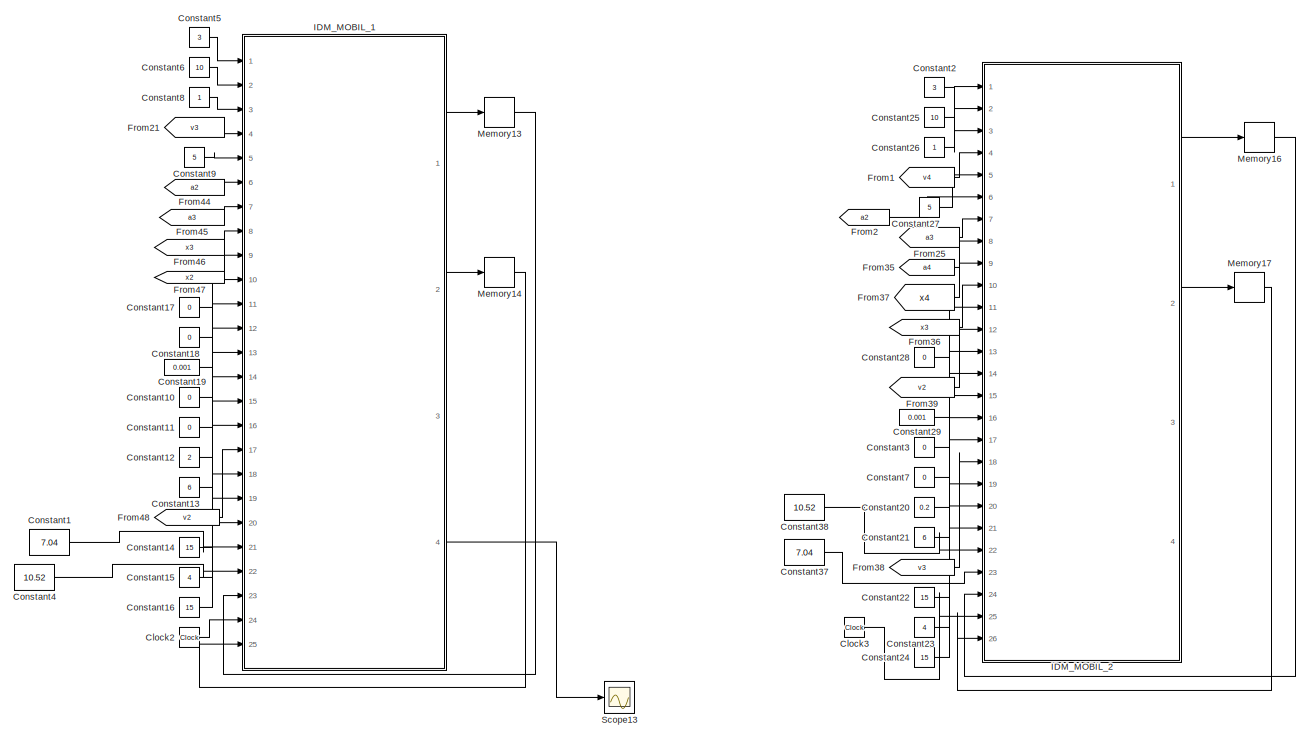
[diagram: root canvas - part 1/2, left side, full height]
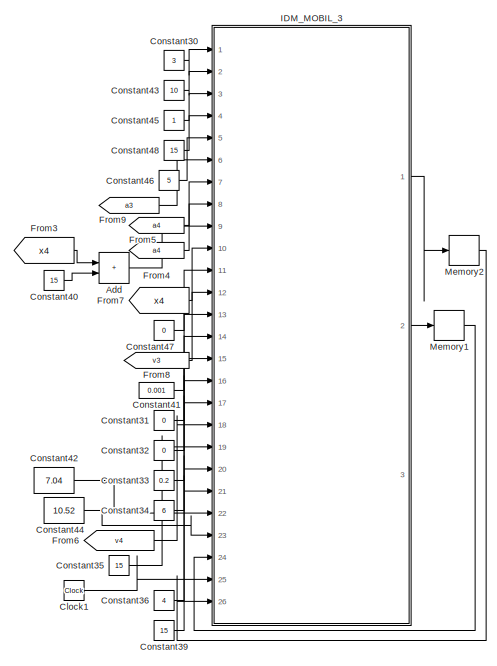
[diagram: root canvas - part 2/2, right side, full height]
MODEL slx_a3bbb998f91c
KIND model
CONFIG AbsTol = auto
CONFIG EnableMultiTasking = off
CONFIG FixedStep = auto
CONFIG MaxStep = auto
CONFIG MinStep = auto
CONFIG RelTol = 1e-3
CONFIG SampleTimeConstraint = Unconstrained
CONFIG Solver = VariableStepAuto
CONFIG SolverName = VariableStepAuto
CONFIG StartTime = 0.0
CONFIG StopTime = 10.0
BLOCK [Sum] Add
  Commented = on
  IconShape = rectangular
  Ports = [2, 1]
BLOCK [Clock] Clock1
  Commented = on
BLOCK [Clock] Clock2
  Commented = on
BLOCK [Clock] Clock3
  Commented = on
BLOCK [Constant] Constant1
  Commented = on
  Value = 7.04
BLOCK [Constant] Constant10
  Commented = on
  Value = 0
BLOCK [Constant] Constant11
  Commented = on
  Value = 0
BLOCK [Constant] Constant12
  Commented = on
  Value = 2
BLOCK [Constant] Constant13
  Commented = on
  Value = 6
BLOCK [Constant] Constant14
  Commented = on
  Value = 15
BLOCK [Constant] Constant15
  Commented = on
  Value = 4
BLOCK [Constant] Constant16
  Commented = on
  Value = 15
BLOCK [Constant] Constant17
  Commented = on
  Value = 0
BLOCK [Constant] Constant18
  Commented = on
  Value = 0
BLOCK [Constant] Constant19
  Commented = on
  Value = 0.001
BLOCK [Constant] Constant2
  Commented = on
  Value = 3
BLOCK [Constant] Constant20
  Commented = on
  Value = 0.2
BLOCK [Constant] Constant21
  Commented = on
  Value = 6
BLOCK [Constant] Constant22
  Commented = on
  Value = 15
BLOCK [Constant] Constant23
  Commented = on
  Value = 4
BLOCK [Constant] Constant24
  Commented = on
  Value = 15
BLOCK [Constant] Constant25
  Commented = on
  Value = 10
BLOCK [Constant] Constant26
  Commented = on
BLOCK [Constant] Constant27
  Commented = on
  Value = 5
BLOCK [Constant] Constant28
  Commented = on
  Value = 0
BLOCK [Constant] Constant29
  Commented = on
  Value = 0.001
BLOCK [Constant] Constant3
  Commented = on
  Value = 0
BLOCK [Constant] Constant30
  Commented = on
  Value = 3
BLOCK [Constant] Constant31
  Commented = on
  Value = 0
BLOCK [Constant] Constant32
  Commented = on
  Value = 0
BLOCK [Constant] Constant33
  Commented = on
  Value = 0.2
BLOCK [Constant] Constant34
  Commented = on
  Value = 6
BLOCK [Constant] Constant35
  Commented = on
  Value = 15
BLOCK [Constant] Constant36
  Commented = on
  Value = 4
BLOCK [Constant] Constant37
  Commented = on
  Value = 7.04
BLOCK [Constant] Constant38
  Commented = on
  Value = 10.52
BLOCK [Constant] Constant39
  Commented = on
  Value = 15
BLOCK [Constant] Constant4
  Commented = on
  Value = 10.52
BLOCK [Constant] Constant40
  Commented = on
  Value = 15
BLOCK [Constant] Constant41
  Commented = on
  Value = 0.001
BLOCK [Constant] Constant42
  Commented = on
  Value = 7.04
BLOCK [Constant] Constant43
  Commented = on
  Value = 10
BLOCK [Constant] Constant44
  Commented = on
  Value = 10.52
BLOCK [Constant] Constant45
  Commented = on
BLOCK [Constant] Constant46
  Commented = on
  Value = 5
BLOCK [Constant] Constant47
  Commented = on
  Value = 0
BLOCK [Constant] Constant48
  Commented = on
  Value = 15
BLOCK [Constant] Constant5
  Commented = on
  Value = 3
BLOCK [Constant] Constant6
  Commented = on
  Value = 10
BLOCK [Constant] Constant7
  Commented = on
  Value = 0
BLOCK [Constant] Constant8
  Commented = on
BLOCK [Constant] Constant9
  Commented = on
  Value = 5
BLOCK [From] From1
  Commented = on
  GotoTag = v4
  TagVisibility = global
BLOCK [From] From2
  Commented = on
  GotoTag = a2
  TagVisibility = global
BLOCK [From] From21
  Commented = on
  GotoTag = v3
  TagVisibility = global
BLOCK [From] From25
  Commented = on
  GotoTag = a3
  TagVisibility = global
BLOCK [From] From3
  Commented = on
  GotoTag = x4
  TagVisibility = global
BLOCK [From] From35
  Commented = on
  GotoTag = a4
  TagVisibility = global
BLOCK [From] From36
  Commented = on
  GotoTag = x3
  TagVisibility = global
BLOCK [From] From37
  Commented = on
  GotoTag = x4
  TagVisibility = global
BLOCK [From] From38
  Commented = on
  GotoTag = v3
  TagVisibility = global
BLOCK [From] From39
  Commented = on
  GotoTag = v2
  TagVisibility = global
BLOCK [From] From4
  Commented = on
  GotoTag = a4
  TagVisibility = global
BLOCK [From] From44
  Commented = on
  GotoTag = a2
  TagVisibility = global
BLOCK [From] From45
  Commented = on
  GotoTag = a3
  TagVisibility = global
BLOCK [From] From46
  Commented = on
  GotoTag = x3
  TagVisibility = global
BLOCK [From] From47
  Commented = on
  GotoTag = x2
  TagVisibility = global
BLOCK [From] From48
  Commented = on
  GotoTag = v2
  TagVisibility = global
BLOCK [From] From5
  Commented = on
  GotoTag = a4
  TagVisibility = global
BLOCK [From] From6
  Commented = on
  GotoTag = v4
  TagVisibility = global
BLOCK [From] From7
  Commented = on
  GotoTag = x4
  TagVisibility = global
BLOCK [From] From8
  Commented = on
  GotoTag = v3
  TagVisibility = global
BLOCK [From] From9
  Commented = on
  GotoTag = a3
  TagVisibility = global
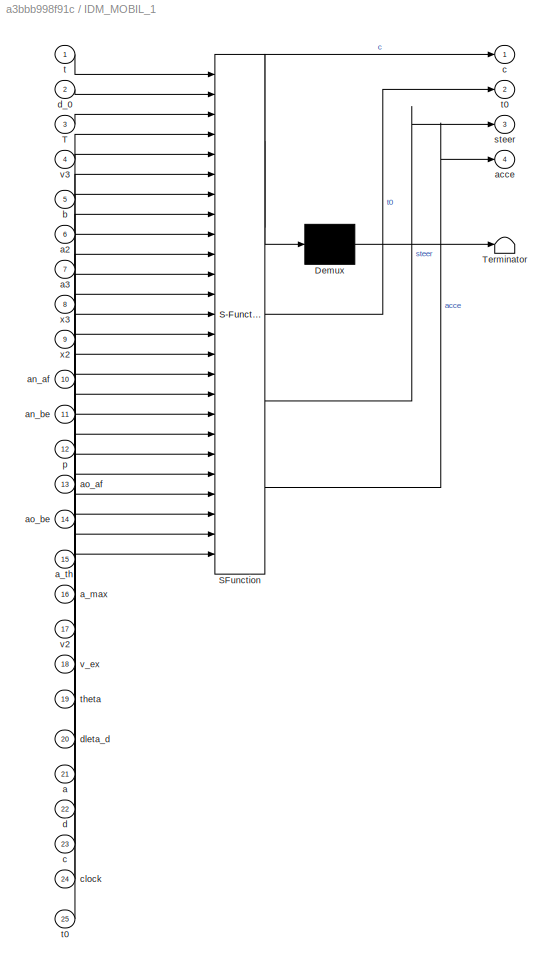
BLOCK [SubSystem] IDM_MOBIL_1
  Commented = on
  ErrorFcn = Stateflow.Translate.translate
  PermitHierarchicalResolution = ExplicitOnly
  Ports = [25, 4]
  RequestExecContextInheritance = off
  SFBlockType = MATLAB Function
  TreatAsAtomicUnit = on
BLOCK [Demux] IDM_MOBIL_1/ Demux 
  Outputs = 1
  Ports = [1, 1]
BLOCK [S-Function] IDM_MOBIL_1/ SFunction 
  EnableBusSupport = on
  FunctionName = sf_sfun
  PortCounts = [25 5]
  Ports = [25, 5]
  SFcnIsStateOwnerBlock = off
  SFunctionDeploymentMode = off
  Tag = Stateflow S-Function 22
BLOCK [Terminator] IDM_MOBIL_1/ Terminator 
BLOCK [Inport] IDM_MOBIL_1/T
  Port = 3
BLOCK [Inport] IDM_MOBIL_1/a
  Port = 21
BLOCK [Inport] IDM_MOBIL_1/a2
  Port = 6
BLOCK [Inport] IDM_MOBIL_1/a3
  Port = 7
BLOCK [Inport] IDM_MOBIL_1/a_max
  Port = 16
BLOCK [Inport] IDM_MOBIL_1/a_th
  Port = 15
BLOCK [Outport] IDM_MOBIL_1/acce
  Port = 4
BLOCK [Inport] IDM_MOBIL_1/an_af
  Port = 10
BLOCK [Inport] IDM_MOBIL_1/an_be
  Port = 11
BLOCK [Inport] IDM_MOBIL_1/ao_af
  Port = 13
BLOCK [Inport] IDM_MOBIL_1/ao_be
  Port = 14
BLOCK [Inport] IDM_MOBIL_1/b
  Port = 5
BLOCK [Outport] IDM_MOBIL_1/c
BLOCK [Inport] IDM_MOBIL_1/c 
  Port = 23
BLOCK [Inport] IDM_MOBIL_1/clock
  Port = 24
BLOCK [Inport] IDM_MOBIL_1/d
  Port = 22
BLOCK [Inport] IDM_MOBIL_1/d_0
  Port = 2
BLOCK [Inport] IDM_MOBIL_1/dleta_d
  Port = 20
BLOCK [Inport] IDM_MOBIL_1/p
  Port = 12
BLOCK [Outport] IDM_MOBIL_1/steer
  Port = 3
BLOCK [Inport] IDM_MOBIL_1/t
BLOCK [Outport] IDM_MOBIL_1/t0
  Port = 2
BLOCK [Inport] IDM_MOBIL_1/t0 
  Port = 25
BLOCK [Inport] IDM_MOBIL_1/theta
  Port = 19
BLOCK [Inport] IDM_MOBIL_1/v2
  Port = 17
BLOCK [Inport] IDM_MOBIL_1/v3
  Port = 4
BLOCK [Inport] IDM_MOBIL_1/v_ex
  Port = 18
BLOCK [Inport] IDM_MOBIL_1/x2
  Port = 9
BLOCK [Inport] IDM_MOBIL_1/x3
  Port = 8
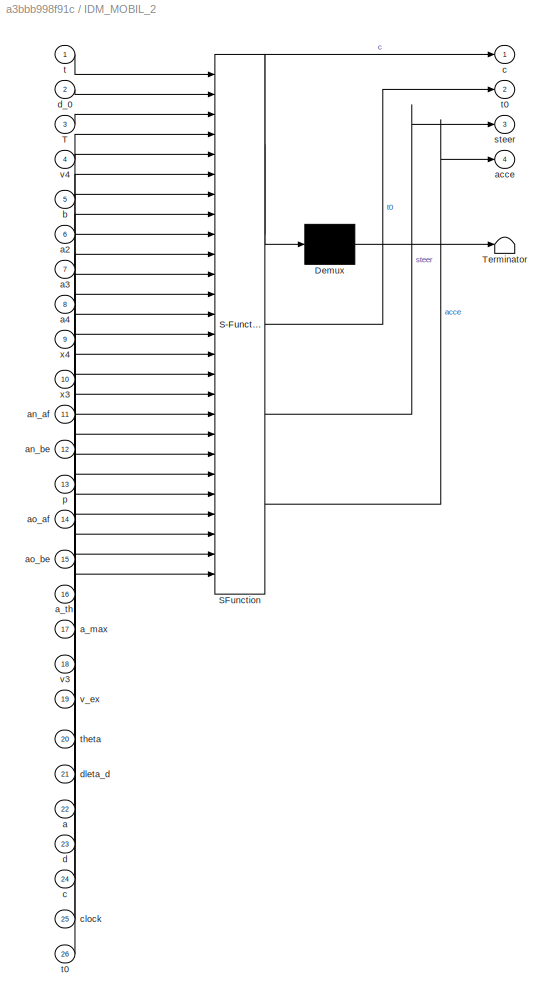
BLOCK [SubSystem] IDM_MOBIL_2
  Commented = on
  ErrorFcn = Stateflow.Translate.translate
  PermitHierarchicalResolution = ExplicitOnly
  Ports = [26, 4]
  RequestExecContextInheritance = off
  SFBlockType = MATLAB Function
  TreatAsAtomicUnit = on
BLOCK [Demux] IDM_MOBIL_2/ Demux 
  Outputs = 1
  Ports = [1, 1]
BLOCK [S-Function] IDM_MOBIL_2/ SFunction 
  EnableBusSupport = on
  FunctionName = sf_sfun
  PortCounts = [26 5]
  Ports = [26, 5]
  SFcnIsStateOwnerBlock = off
  SFunctionDeploymentMode = off
  Tag = Stateflow S-Function 23
BLOCK [Terminator] IDM_MOBIL_2/ Terminator 
BLOCK [Inport] IDM_MOBIL_2/T
  Port = 3
BLOCK [Inport] IDM_MOBIL_2/a
  Port = 22
BLOCK [Inport] IDM_MOBIL_2/a2
  Port = 6
BLOCK [Inport] IDM_MOBIL_2/a3
  Port = 7
BLOCK [Inport] IDM_MOBIL_2/a4
  Port = 8
BLOCK [Inport] IDM_MOBIL_2/a_max
  Port = 17
BLOCK [Inport] IDM_MOBIL_2/a_th
  Port = 16
BLOCK [Outport] IDM_MOBIL_2/acce
  Port = 4
BLOCK [Inport] IDM_MOBIL_2/an_af
  Port = 11
BLOCK [Inport] IDM_MOBIL_2/an_be
  Port = 12
BLOCK [Inport] IDM_MOBIL_2/ao_af
  Port = 14
BLOCK [Inport] IDM_MOBIL_2/ao_be
  Port = 15
BLOCK [Inport] IDM_MOBIL_2/b
  Port = 5
BLOCK [Outport] IDM_MOBIL_2/c
BLOCK [Inport] IDM_MOBIL_2/c 
  Port = 24
BLOCK [Inport] IDM_MOBIL_2/clock
  Port = 25
BLOCK [Inport] IDM_MOBIL_2/d
  Port = 23
BLOCK [Inport] IDM_MOBIL_2/d_0
  Port = 2
BLOCK [Inport] IDM_MOBIL_2/dleta_d
  Port = 21
BLOCK [Inport] IDM_MOBIL_2/p
  Port = 13
BLOCK [Outport] IDM_MOBIL_2/steer
  Port = 3
BLOCK [Inport] IDM_MOBIL_2/t
BLOCK [Outport] IDM_MOBIL_2/t0
  Port = 2
BLOCK [Inport] IDM_MOBIL_2/t0 
  Port = 26
BLOCK [Inport] IDM_MOBIL_2/theta
  Port = 20
BLOCK [Inport] IDM_MOBIL_2/v3
  Port = 18
BLOCK [Inport] IDM_MOBIL_2/v4
  Port = 4
BLOCK [Inport] IDM_MOBIL_2/v_ex
  Port = 19
BLOCK [Inport] IDM_MOBIL_2/x3
  Port = 10
BLOCK [Inport] IDM_MOBIL_2/x4
  Port = 9
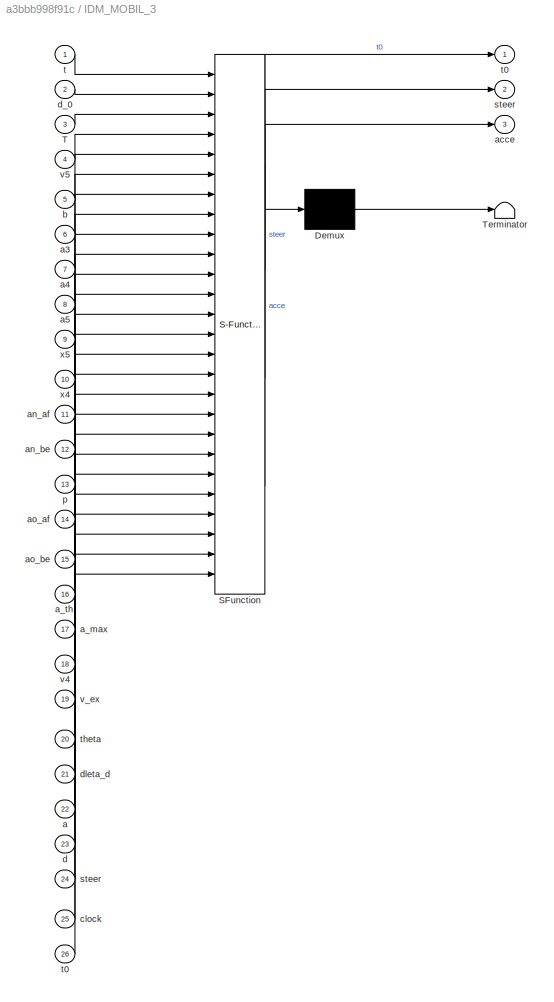
BLOCK [SubSystem] IDM_MOBIL_3
  Commented = on
  ErrorFcn = Stateflow.Translate.translate
  PermitHierarchicalResolution = ExplicitOnly
  Ports = [26, 3]
  RequestExecContextInheritance = off
  SFBlockType = MATLAB Function
  TreatAsAtomicUnit = on
BLOCK [Demux] IDM_MOBIL_3/ Demux 
  Outputs = 1
  Ports = [1, 1]
BLOCK [S-Function] IDM_MOBIL_3/ SFunction 
  EnableBusSupport = on
  FunctionName = sf_sfun
  PortCounts = [26 4]
  Ports = [26, 4]
  SFcnIsStateOwnerBlock = off
  SFunctionDeploymentMode = off
  Tag = Stateflow S-Function 24
BLOCK [Terminator] IDM_MOBIL_3/ Terminator 
BLOCK [Inport] IDM_MOBIL_3/T
  Port = 3
BLOCK [Inport] IDM_MOBIL_3/a
  Port = 22
BLOCK [Inport] IDM_MOBIL_3/a3
  Port = 6
BLOCK [Inport] IDM_MOBIL_3/a4
  Port = 7
BLOCK [Inport] IDM_MOBIL_3/a5
  Port = 8
BLOCK [Inport] IDM_MOBIL_3/a_max
  Port = 17
BLOCK [Inport] IDM_MOBIL_3/a_th
  Port = 16
BLOCK [Outport] IDM_MOBIL_3/acce
  Port = 3
BLOCK [Inport] IDM_MOBIL_3/an_af
  Port = 11
BLOCK [Inport] IDM_MOBIL_3/an_be
  Port = 12
BLOCK [Inport] IDM_MOBIL_3/ao_af
  Port = 14
BLOCK [Inport] IDM_MOBIL_3/ao_be
  Port = 15
BLOCK [Inport] IDM_MOBIL_3/b
  Port = 5
BLOCK [Inport] IDM_MOBIL_3/clock
  Port = 25
BLOCK [Inport] IDM_MOBIL_3/d
  Port = 23
BLOCK [Inport] IDM_MOBIL_3/d_0
  Port = 2
BLOCK [Inport] IDM_MOBIL_3/dleta_d
  Port = 21
BLOCK [Inport] IDM_MOBIL_3/p
  Port = 13
BLOCK [Outport] IDM_MOBIL_3/steer
  Port = 2
BLOCK [Inport] IDM_MOBIL_3/steer 
  Port = 24
BLOCK [Inport] IDM_MOBIL_3/t
BLOCK [Outport] IDM_MOBIL_3/t0
BLOCK [Inport] IDM_MOBIL_3/t0 
  Port = 26
BLOCK [Inport] IDM_MOBIL_3/theta
  Port = 20
BLOCK [Inport] IDM_MOBIL_3/v4
  Port = 18
BLOCK [Inport] IDM_MOBIL_3/v5
  Port = 4
BLOCK [Inport] IDM_MOBIL_3/v_ex
  Port = 19
BLOCK [Inport] IDM_MOBIL_3/x4
  Port = 10
BLOCK [Inport] IDM_MOBIL_3/x5
  Port = 9
BLOCK [Memory] Memory1
  Commented = on
  InitialCondition = 7.04
BLOCK [Memory] Memory13
  Commented = on
  InitialCondition = 7.04
BLOCK [Memory] Memory14
  Commented = on
  InitialCondition = -3
BLOCK [Memory] Memory16
  Commented = on
  InitialCondition = 10.52
BLOCK [Memory] Memory17
  Commented = on
  InitialCondition = -3
BLOCK [Memory] Memory2
  Commented = on
  InitialCondition = -3
BLOCK [Scope] Scope13
  Commented = on
  Floating = off
  NumInputPorts = 1
  Ports = [1]
  ScopeSpecificationString = Simulink.scopes.TimeScopeBlockCfg('CurrentConfiguration', extmgr.ConfigurationSet(extmgr.Configuration('Core','General UI',true),extmgr.Configuration('Core','Source UI',true),extmgr.Configuration('Sources','WiredSimulink',true),extmgr.Configuration('Visuals','Time Domain',true,'SerializedDisplays',{struct('MinYLimReal','-19.16905','MaxYLimReal','5.85478','YLabelReal','','MinYLimMag','0.00000','Max...<+1393ch>
LINE Add:1 -> IDM_MOBIL_3:9
LINE Clock1:1 -> IDM_MOBIL_3:25
LINE Clock2:1 -> IDM_MOBIL_1:24
LINE Clock3:1 -> IDM_MOBIL_2:25
LINE Constant10:1 -> IDM_MOBIL_1:13
LINE Constant11:1 -> IDM_MOBIL_1:14
LINE Constant12:1 -> IDM_MOBIL_1:15
LINE Constant13:1 -> IDM_MOBIL_1:16
LINE Constant14:1 -> IDM_MOBIL_1:18
LINE Constant15:1 -> IDM_MOBIL_1:19
LINE Constant16:1 -> IDM_MOBIL_1:20
LINE Constant17:1 -> IDM_MOBIL_1:10
LINE Constant18:1 -> IDM_MOBIL_1:11
LINE Constant19:1 -> IDM_MOBIL_1:12
LINE Constant1:1 -> IDM_MOBIL_1:21
LINE Constant20:1 -> IDM_MOBIL_2:16
LINE Constant21:1 -> IDM_MOBIL_2:17
LINE Constant22:1 -> IDM_MOBIL_2:19
LINE Constant23:1 -> IDM_MOBIL_2:20
LINE Constant24:1 -> IDM_MOBIL_2:21
LINE Constant25:1 -> IDM_MOBIL_2:2
LINE Constant26:1 -> IDM_MOBIL_2:3
LINE Constant27:1 -> IDM_MOBIL_2:5
LINE Constant28:1 -> IDM_MOBIL_2:11
LINE Constant29:1 -> IDM_MOBIL_2:13
LINE Constant2:1 -> IDM_MOBIL_2:1
LINE Constant30:1 -> IDM_MOBIL_3:1
LINE Constant31:1 -> IDM_MOBIL_3:14
LINE Constant32:1 -> IDM_MOBIL_3:15
LINE Constant33:1 -> IDM_MOBIL_3:16
LINE Constant34:1 -> IDM_MOBIL_3:17
LINE Constant35:1 -> IDM_MOBIL_3:19
LINE Constant36:1 -> IDM_MOBIL_3:20
LINE Constant37:1 -> IDM_MOBIL_2:23
LINE Constant38:1 -> IDM_MOBIL_2:22
LINE Constant39:1 -> IDM_MOBIL_3:21
LINE Constant3:1 -> IDM_MOBIL_2:14
LINE Constant40:1 -> Add:2
LINE Constant41:1 -> IDM_MOBIL_3:13
LINE Constant42:1 -> IDM_MOBIL_3:22
LINE Constant43:1 -> IDM_MOBIL_3:2
LINE Constant44:1 -> IDM_MOBIL_3:23
LINE Constant45:1 -> IDM_MOBIL_3:3
LINE Constant46:1 -> IDM_MOBIL_3:5
LINE Constant47:1 -> IDM_MOBIL_3:11
LINE Constant48:1 -> IDM_MOBIL_3:4
LINE Constant4:1 -> IDM_MOBIL_1:22
LINE Constant5:1 -> IDM_MOBIL_1:1
LINE Constant6:1 -> IDM_MOBIL_1:2
LINE Constant7:1 -> IDM_MOBIL_2:15
LINE Constant8:1 -> IDM_MOBIL_1:3
LINE Constant9:1 -> IDM_MOBIL_1:5
LINE From1:1 -> IDM_MOBIL_2:4
LINE From21:1 -> IDM_MOBIL_1:4
LINE From25:1 -> IDM_MOBIL_2:7
LINE From2:1 -> IDM_MOBIL_2:6
LINE From35:1 -> IDM_MOBIL_2:8
LINE From36:1 -> IDM_MOBIL_2:10
LINE From37:1 -> IDM_MOBIL_2:9
LINE From38:1 -> IDM_MOBIL_2:18
LINE From39:1 -> IDM_MOBIL_2:12
LINE From3:1 -> Add:1
LINE From44:1 -> IDM_MOBIL_1:6
LINE From45:1 -> IDM_MOBIL_1:7
LINE From46:1 -> IDM_MOBIL_1:8
LINE From47:1 -> IDM_MOBIL_1:9
LINE From48:1 -> IDM_MOBIL_1:17
LINE From4:1 -> IDM_MOBIL_3:8
LINE From5:1 -> IDM_MOBIL_3:7
LINE From6:1 -> IDM_MOBIL_3:18
LINE From7:1 -> IDM_MOBIL_3:10
LINE From8:1 -> IDM_MOBIL_3:12
LINE From9:1 -> IDM_MOBIL_3:6
LINE IDM_MOBIL_1:1 -> Memory13:1
LINE IDM_MOBIL_1:2 -> Memory14:1
LINE IDM_MOBIL_1:4 -> Scope13:1
LINE IDM_MOBIL_2:1 -> Memory16:1
LINE IDM_MOBIL_2:2 -> Memory17:1
LINE IDM_MOBIL_3:1 -> Memory2:1
LINE IDM_MOBIL_3:2 -> Memory1:1
LINE Memory13:1 -> IDM_MOBIL_1:23
LINE Memory14:1 -> IDM_MOBIL_1:25
LINE Memory16:1 -> IDM_MOBIL_2:24
LINE Memory17:1 -> IDM_MOBIL_2:26
LINE Memory1:1 -> IDM_MOBIL_3:24
LINE Memory2:1 -> IDM_MOBIL_3:26
CHART IDM_MOBIL_3 states=1 transitions=1
  STATE_LABEL 'eML_blk_kernel()'
  STATE_LABEL 'SCRIPT:\nfunction [t0,steer,acce] = fcn(t,d_0,T,v5,b,a3,a4,a5,x5,x4,an_af,an_be,p,ao_af,ao_be,a_th,a_max,v4,v_ex,theta,dleta_d,a,d,steer,clock,t0)\ndelta_t = 3.5;\nac_be = a4;\nvc_af = v4 + a4*t;\ndleta_v = v5-v4;\ndleta_cv_af = v5+a5*t-vc_af;\nan_af = an_af+an_be+a3*t;\ndleta_cd = x5+v5*t+0.5*a5*t^2-(x4+v4*t+0.5*a4*t^2);\ndc_ex = d_0+T*vc_af+(vc_af*dleta_cv_af/(2*sqrt(a_max*b)));\nac_af = a_max*(1-(vc_af/v...<+524ch>'
CHART IDM_MOBIL_1 states=1 transitions=1
  STATE_LABEL 'eML_blk_kernel()'
  STATE_LABEL 'SCRIPT:\nfunction [c,t0,steer,acce] = fcn(t,d_0,T,v3,b,a2,a3,x3,x2,an_af,an_be,p,ao_af,ao_be,a_th,a_max,v2,v_ex,theta,dleta_d,a,d,c,clock,t0)\ndelta_t = 3.5;\nac_be = a2;\nvc_af = v2 + a2*t;\ndleta_v = v3-v2;\ndleta_cv_af = v3+a3*t-vc_af;\ndleta_cd = x3+v3*t+0.5*a3*t^2-(x2+v2*t+0.5*a2*t^2);\ndc_ex = d_0+T*vc_af+(vc_af*dleta_cv_af/(2*sqrt(a_max*b)));\nac_af = a_max*(1-(vc_af/v_ex)^theta-(dc_ex/dleta_cd)^2);...<+517ch>'
CHART IDM_MOBIL_2 states=1 transitions=1
  STATE_LABEL 'eML_blk_kernel()'
  STATE_LABEL 'SCRIPT:\nfunction [c,t0,steer,acce] = fcn(t,d_0,T,v4,b,a2,a3,a4,x4,x3,an_af,an_be,p,ao_af,ao_be,a_th,a_max,v3,v_ex,theta,dleta_d,a,d,c,clock,t0)\ndelta_t = 3.5;\nac_be = a3;\nvc_af = v3 + a3*t;\ndleta_v = v4-v3;\ndleta_cv_af = v4+a4*t-vc_af;\nan_af = an_af+an_be+a2*t;\ndleta_cd = x4+v4*t+0.5*a4*t^2-(x3+v3*t+0.5*a3*t^2);\ndc_ex = d_0+T*vc_af+(vc_af*dleta_cv_af/(2*sqrt(a_max*b)));\nac_af = a_max*(1-(vc_af/v_e...<+546ch>'
CHART  states=0 transitions=0
CHART  states=0 transitions=0
CHART  states=0 transitions=0
